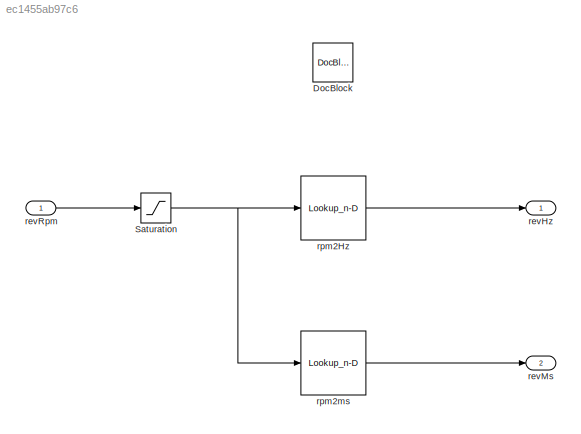
MODEL slx_ec1455ab97c6
KIND model
CONFIG AbsTol = auto
CONFIG EnableMultiTasking = off
CONFIG FixedStep = 0.2
CONFIG MaxStep = auto
CONFIG MinStep = auto
CONFIG RelTol = 1e-3
CONFIG SampleTimeConstraint = Unconstrained
CONFIG SolverName = FixedStepAuto
CONFIG StartTime = 0.0
CONFIG StopTime = 10.0
BLOCK [Reference] DocBlock  REF=simulink/Model-Wide
Utilities/DocBlock
  AttributesFormatString = %<ECoderFlag>
  Ports = []
  SourceBlock = simulink/Model-Wide\nUtilities/DocBlock
  SourceProductBaseCode = SL
  SourceType = DocBlock
  UserDataPersistent = on
BLOCK [Saturate] Saturation
  AttributesFormatString = min: %<LowerLimit> rpm\nmax: %<UpperLimit> rpm
  LowerLimit = rpm.LowerLimit
  OutDataTypeStr = double
  UpperLimit = rpm.UpperLimit
BLOCK [Outport] revHz
  OutDataTypeStr = double
  PortDimensions = 1
  Unit = Hz
  VarSizeSig = No
BLOCK [Outport] revMs
  OutDataTypeStr = double
  Port = 2
  PortDimensions = 1
  Unit = msec
  VarSizeSig = No
BLOCK [Inport] revRpm
  OutDataTypeStr = double
  PortDimensions = 1
  Unit = rpm
  VarSizeSig = No
BLOCK [Lookup_n-D] rpm2Hz
  BreakpointsForDimension1 = [1000:250:12000]
  InputPortMap = u0
  InternalRulePriority = Speed
  NumberOfTableDimensions = 1
  Ports = [1, 1]
  RndMeth = Simplest
  Table = [1000:250:12000]/60
BLOCK [Lookup_n-D] rpm2ms
  BreakpointsForDimension1 = [1000:250:12000]
  InputPortMap = u0
  InternalRulePriority = Speed
  NumberOfTableDimensions = 1
  Ports = [1, 1]
  RndMeth = Simplest
  Table = 60*1000./[1000:250:12000]
NET Saturation:1 -> rpm2Hz:1, rpm2ms:1
LINE revRpm:1 -> Saturation:1
LINE rpm2Hz:1 -> revHz:1
LINE rpm2ms:1 -> revMs:1
note: NET lines group one-source signal fan-out (src -> all destinations, sorted); 1:1 wires keep LINE
